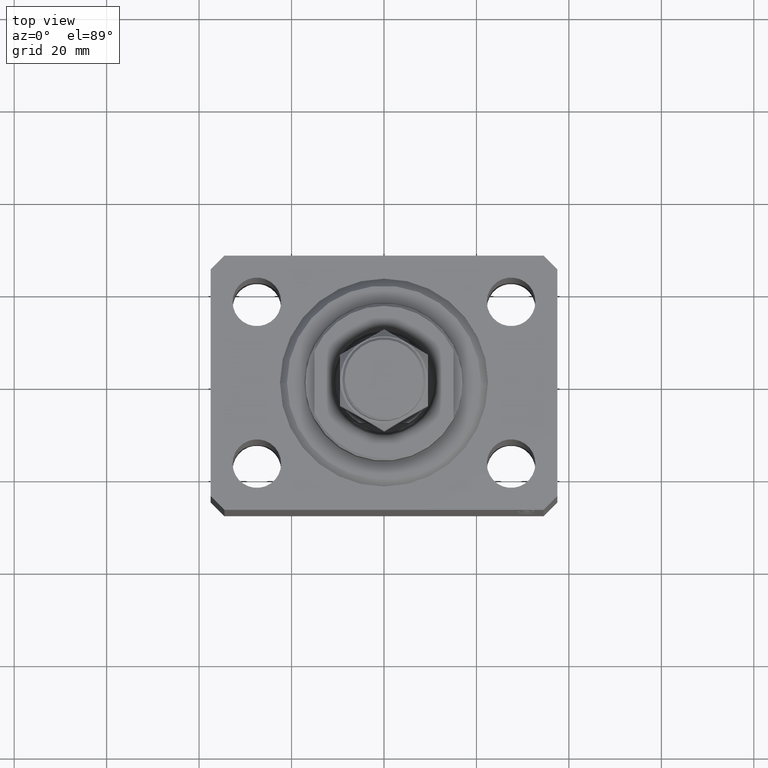
[diagram: clean part render]
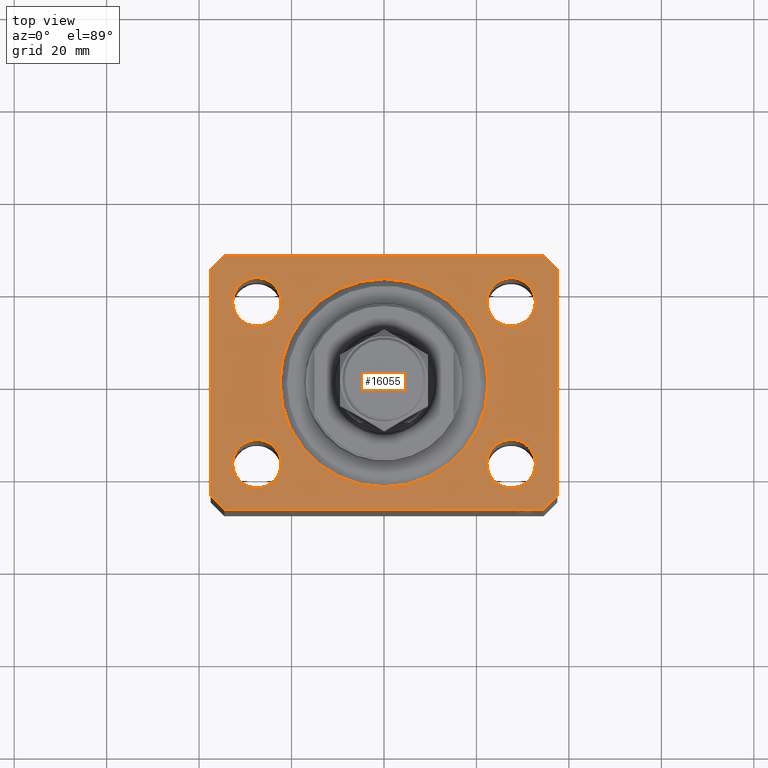
[diagram: same view with one face highlighted and labeled with its STEP entity id]
A machine part, top view. The second image highlights one B-rep face of the part: STEP entity #16055.
In plain terms, the highlighted planar face has unit normal (0, 0, 1).
Its self-contained STEP definition (entity closure, byte-faithful):
#177 = CARTESIAN_POINT ( 'NONE',  ( 27.49999999999999289, -17.50000000000000000, 0.000000000000000000 ) ) ;
#405 = CARTESIAN_POINT ( 'NONE',  ( -34.49999999999998579, -27.49999999999999645, 0.000000000000000000 ) ) ;
#1527 = LINE ( 'NONE', #30611, #24210 ) ;
#1590 = DIRECTION ( 'NONE',  ( 0.000000000000000000, 0.000000000000000000, 1.000000000000000000 ) ) ;
#1744 = DIRECTION ( 'NONE',  ( 1.000000000000000000, 0.000000000000000000, 0.000000000000000000 ) ) ;
#1850 = EDGE_LOOP ( 'NONE', ( #40602, #24947 ) ) ;
#1961 = CIRCLE ( 'NONE', #19154, 22.50000000000000355 ) ;
#1994 = VERTEX_POINT ( 'NONE', #3373 ) ;
#2024 = EDGE_CURVE ( 'NONE', #20496, #36748, #30701, .T. ) ;
#2246 = AXIS2_PLACEMENT_3D ( 'NONE', #10883, #35940, #28462 ) ;
#2276 = AXIS2_PLACEMENT_3D ( 'NONE', #31024, #42006, #45314 ) ;
#3080 = VERTEX_POINT ( 'NONE', #42292 ) ;
#3373 = CARTESIAN_POINT ( 'NONE',  ( 37.49999999999999289, -24.50000000000000000, 0.000000000000000000 ) ) ;
#3408 = EDGE_CURVE ( 'NONE', #3080, #14615, #42639, .T. ) ;
#3789 = CARTESIAN_POINT ( 'NONE',  ( 37.49999999999999289, -24.50000000000000000, 0.000000000000000000 ) ) ;
#4741 = FACE_BOUND ( 'NONE', #8420, .T. ) ;
#4976 = VERTEX_POINT ( 'NONE', #8072 ) ;
#5238 = DIRECTION ( 'NONE',  ( 0.000000000000000000, 0.000000000000000000, 1.000000000000000000 ) ) ;
#5327 = VERTEX_POINT ( 'NONE', #5833 ) ;
#5833 = CARTESIAN_POINT ( 'NONE',  ( -32.75000000000000000, 17.49999999999999645, 0.000000000000000000 ) ) ;
#6409 = EDGE_LOOP ( 'NONE', ( #15706, #43586, #24204, #14853, #23542, #17841, #35893, #38768 ) ) ;
#6503 = CARTESIAN_POINT ( 'NONE',  ( 32.75000000000000000, 17.49999999999999289, 0.000000000000000000 ) ) ;
#6727 = VERTEX_POINT ( 'NONE', #405 ) ;
#7079 = VERTEX_POINT ( 'NONE', #26804 ) ;
#7121 = CARTESIAN_POINT ( 'NONE',  ( -22.25000000000000000, 17.49999999999999645, 0.000000000000000000 ) ) ;
#7281 = VERTEX_POINT ( 'NONE', #29323 ) ;
#7471 = DIRECTION ( 'NONE',  ( 1.000000000000000000, 0.000000000000000000, 0.000000000000000000 ) ) ;
#7934 = CARTESIAN_POINT ( 'NONE',  ( 32.74999999999999289, -17.50000000000000000, 0.000000000000000000 ) ) ;
#7937 = DIRECTION ( 'NONE',  ( 0.000000000000000000, 0.000000000000000000, 1.000000000000000000 ) ) ;
#8047 = EDGE_CURVE ( 'NONE', #26975, #11142, #30139, .T. ) ;
#8050 = EDGE_CURVE ( 'NONE', #37148, #26944, #1961, .T. ) ;
#8072 = CARTESIAN_POINT ( 'NONE',  ( -22.24999999999999289, -17.50000000000000000, 0.000000000000000000 ) ) ;
#8300 = DIRECTION ( 'NONE',  ( 1.000000000000000000, 0.000000000000000000, 0.000000000000000000 ) ) ;
#8420 = EDGE_LOOP ( 'NONE', ( #26923, #39799 ) ) ;
#9104 = ORIENTED_EDGE ( 'NONE', *, *, #35010, .F. ) ;
#9440 = CIRCLE ( 'NONE', #28847, 5.250000000000000888 ) ;
#10617 = LINE ( 'NONE', #3789, #23417 ) ;
#10781 = CARTESIAN_POINT ( 'NONE',  ( 34.50000000000056843, 27.50000000000000000, 0.000000000000000000 ) ) ;
#10883 = CARTESIAN_POINT ( 'NONE',  ( 27.49999999999999289, -17.50000000000000000, 0.000000000000000000 ) ) ;
#10922 = CARTESIAN_POINT ( 'NONE',  ( 0.000000000000000000, 0.000000000000000000, 0.000000000000000000 ) ) ;
#11114 = ORIENTED_EDGE ( 'NONE', *, *, #27872, .F. ) ;
#11142 = VERTEX_POINT ( 'NONE', #22207 ) ;
#11780 = EDGE_CURVE ( 'NONE', #7281, #3080, #38764, .T. ) ;
#12092 = DIRECTION ( 'NONE',  ( 0.000000000000000000, 0.000000000000000000, 1.000000000000000000 ) ) ;
#12325 = CARTESIAN_POINT ( 'NONE',  ( -37.49999999999999289, 24.50000000000000000, 0.000000000000000000 ) ) ;
#12391 = DIRECTION ( 'NONE',  ( 1.000000000000000000, 0.000000000000000000, 0.000000000000000000 ) ) ;
#12546 = DIRECTION ( 'NONE',  ( 0.000000000000000000, 0.000000000000000000, 1.000000000000000000 ) ) ;
#12812 = VECTOR ( 'NONE', #15144, 1000.000000000000114 ) ;
#13045 = EDGE_CURVE ( 'NONE', #5327, #36906, #45026, .T. ) ;
#13379 = DIRECTION ( 'NONE',  ( 0.000000000000000000, 0.000000000000000000, 1.000000000000000000 ) ) ;
#13505 = EDGE_CURVE ( 'NONE', #14615, #26975, #32733, .T. ) ;
#14410 = CIRCLE ( 'NONE', #42832, 5.250000000000000888 ) ;
#14424 = FACE_OUTER_BOUND ( 'NONE', #6409, .T. ) ;
#14615 = VERTEX_POINT ( 'NONE', #44040 ) ;
#14853 = ORIENTED_EDGE ( 'NONE', *, *, #18432, .T. ) ;
#15144 = DIRECTION ( 'NONE',  ( 0.7071067811865474617, 0.7071067811865474617, 0.000000000000000000 ) ) ;
#15224 = EDGE_LOOP ( 'NONE', ( #39924, #17226 ) ) ;
#15600 = DIRECTION ( 'NONE',  ( 0.7071067811865483499, -0.7071067811865466846, 0.000000000000000000 ) ) ;
#15647 = CARTESIAN_POINT ( 'NONE',  ( -27.49999999999999289, -17.50000000000000000, 0.000000000000000000 ) ) ;
#15706 = ORIENTED_EDGE ( 'NONE', *, *, #3408, .T. ) ;
#16055 = ADVANCED_FACE ( 'NONE', ( #39480, #4741, #23027, #28728, #29822, #14424 ), #43011, .T. ) ;
#17226 = ORIENTED_EDGE ( 'NONE', *, *, #13045, .F. ) ;
#17832 = ORIENTED_EDGE ( 'NONE', *, *, #8050, .F. ) ;
#17841 = ORIENTED_EDGE ( 'NONE', *, *, #22284, .T. ) ;
#18271 = VERTEX_POINT ( 'NONE', #25460 ) ;
#18432 = EDGE_CURVE ( 'NONE', #11142, #6727, #1527, .T. ) ;
#18693 = EDGE_LOOP ( 'NONE', ( #11114, #9104 ) ) ;
#19154 = AXIS2_PLACEMENT_3D ( 'NONE', #27104, #12092, #41376 ) ;
#19680 = CIRCLE ( 'NONE', #39141, 5.250000000000000888 ) ;
#20455 = EDGE_CURVE ( 'NONE', #36748, #20496, #41916, .T. ) ;
#20496 = VERTEX_POINT ( 'NONE', #7934 ) ;
#20541 = EDGE_CURVE ( 'NONE', #6727, #7079, #29255, .T. ) ;
#21829 = AXIS2_PLACEMENT_3D ( 'NONE', #45484, #13379, #34708 ) ;
#21955 = EDGE_CURVE ( 'NONE', #26944, #37148, #22490, .T. ) ;
#22013 = DIRECTION ( 'NONE',  ( 0.000000000000000000, 0.000000000000000000, 1.000000000000000000 ) ) ;
#22207 = CARTESIAN_POINT ( 'NONE',  ( -37.49999999999999289, -24.50000000000000000, 0.000000000000000000 ) ) ;
#22284 = EDGE_CURVE ( 'NONE', #7079, #1994, #25703, .T. ) ;
#22454 = VECTOR ( 'NONE', #36279, 1000.000000000000000 ) ;
#22490 = CIRCLE ( 'NONE', #2276, 22.50000000000000355 ) ;
#23027 = FACE_BOUND ( 'NONE', #1850, .T. ) ;
#23417 = VECTOR ( 'NONE', #39628, 1000.000000000000000 ) ;
#23526 = VERTEX_POINT ( 'NONE', #35007 ) ;
#23542 = ORIENTED_EDGE ( 'NONE', *, *, #20541, .T. ) ;
#24204 = ORIENTED_EDGE ( 'NONE', *, *, #8047, .T. ) ;
#24210 = VECTOR ( 'NONE', #15600, 1000.000000000000000 ) ;
#24947 = ORIENTED_EDGE ( 'NONE', *, *, #20455, .F. ) ;
#25460 = CARTESIAN_POINT ( 'NONE',  ( -32.74999999999999289, -17.50000000000000000, 0.000000000000000000 ) ) ;
#25703 = LINE ( 'NONE', #38886, #12812 ) ;
#25773 = CARTESIAN_POINT ( 'NONE',  ( -27.50000000000000000, 17.49999999999999645, 0.000000000000000000 ) ) ;
#26804 = CARTESIAN_POINT ( 'NONE',  ( 34.49999999999999289, -27.49999999999999645, 0.000000000000000000 ) ) ;
#26850 = CARTESIAN_POINT ( 'NONE',  ( -37.49999999999999289, 24.50000000000000000, 0.000000000000000000 ) ) ;
#26923 = ORIENTED_EDGE ( 'NONE', *, *, #40999, .F. ) ;
#26944 = VERTEX_POINT ( 'NONE', #44650 ) ;
#26975 = VERTEX_POINT ( 'NONE', #26850 ) ;
#27050 = CARTESIAN_POINT ( 'NONE',  ( 27.50000000000000000, 17.49999999999999289, 0.000000000000000000 ) ) ;
#27076 = VECTOR ( 'NONE', #44210, 1000.000000000000000 ) ;
#27104 = CARTESIAN_POINT ( 'NONE',  ( 0.000000000000000000, 0.000000000000000000, 0.000000000000000000 ) ) ;
#27464 = EDGE_CURVE ( 'NONE', #18271, #4976, #36077, .T. ) ;
#27872 = EDGE_CURVE ( 'NONE', #31971, #23526, #14410, .T. ) ;
#28103 = VECTOR ( 'NONE', #31411, 1000.000000000000000 ) ;
#28241 = CARTESIAN_POINT ( 'NONE',  ( 37.50000000000051870, 24.49999999999995381, 0.000000000000000000 ) ) ;
#28462 = DIRECTION ( 'NONE',  ( 1.000000000000000000, 0.000000000000000000, 0.000000000000000000 ) ) ;
#28728 = FACE_BOUND ( 'NONE', #18693, .T. ) ;
#28847 = AXIS2_PLACEMENT_3D ( 'NONE', #37152, #12546, #1744 ) ;
#28848 = EDGE_CURVE ( 'NONE', #1994, #7281, #10617, .T. ) ;
#29255 = LINE ( 'NONE', #43540, #22454 ) ;
#29323 = CARTESIAN_POINT ( 'NONE',  ( 37.50000000000051870, 24.49999999999995381, 0.000000000000000000 ) ) ;
#29822 = FACE_BOUND ( 'NONE', #15224, .T. ) ;
#29851 = EDGE_LOOP ( 'NONE', ( #37573, #17832 ) ) ;
#29918 = CARTESIAN_POINT ( 'NONE',  ( -34.49999999999999289, 27.50000000000000000, 0.000000000000000000 ) ) ;
#29945 = EDGE_CURVE ( 'NONE', #36906, #5327, #19680, .T. ) ;
#30139 = LINE ( 'NONE', #12325, #36387 ) ;
#30611 = CARTESIAN_POINT ( 'NONE',  ( -37.49999999999999289, -24.50000000000000000, 0.000000000000000000 ) ) ;
#30701 = CIRCLE ( 'NONE', #2246, 5.250000000000000888 ) ;
#31024 = CARTESIAN_POINT ( 'NONE',  ( 0.000000000000000000, 0.000000000000000000, 0.000000000000000000 ) ) ;
#31411 = DIRECTION ( 'NONE',  ( -1.000000000000000000, 0.000000000000000000, 0.000000000000000000 ) ) ;
#31971 = VERTEX_POINT ( 'NONE', #6503 ) ;
#32342 = DIRECTION ( 'NONE',  ( 1.000000000000000000, 0.000000000000000000, 0.000000000000000000 ) ) ;
#32517 = CIRCLE ( 'NONE', #38512, 5.250000000000000888 ) ;
#32733 = LINE ( 'NONE', #29918, #27076 ) ;
#33253 = CARTESIAN_POINT ( 'NONE',  ( 27.50000000000000000, 17.49999999999999289, 0.000000000000000000 ) ) ;
#33572 = DIRECTION ( 'NONE',  ( 1.000000000000000000, 0.000000000000000000, -0.000000000000000000 ) ) ;
#34534 = VECTOR ( 'NONE', #41604, 1000.000000000000114 ) ;
#34557 = AXIS2_PLACEMENT_3D ( 'NONE', #177, #43081, #35132 ) ;
#34708 = DIRECTION ( 'NONE',  ( 1.000000000000000000, 0.000000000000000000, 0.000000000000000000 ) ) ;
#35007 = CARTESIAN_POINT ( 'NONE',  ( 22.25000000000000000, 17.49999999999999289, 0.000000000000000000 ) ) ;
#35010 = EDGE_CURVE ( 'NONE', #23526, #31971, #32517, .T. ) ;
#35132 = DIRECTION ( 'NONE',  ( 1.000000000000000000, 0.000000000000000000, 0.000000000000000000 ) ) ;
#35893 = ORIENTED_EDGE ( 'NONE', *, *, #28848, .T. ) ;
#35940 = DIRECTION ( 'NONE',  ( 0.000000000000000000, 0.000000000000000000, 1.000000000000000000 ) ) ;
#36077 = CIRCLE ( 'NONE', #38326, 5.250000000000000888 ) ;
#36279 = DIRECTION ( 'NONE',  ( 1.000000000000000000, 0.000000000000000000, 0.000000000000000000 ) ) ;
#36387 = VECTOR ( 'NONE', #44192, 1000.000000000000000 ) ;
#36748 = VERTEX_POINT ( 'NONE', #43015 ) ;
#36906 = VERTEX_POINT ( 'NONE', #7121 ) ;
#37148 = VERTEX_POINT ( 'NONE', #38462 ) ;
#37152 = CARTESIAN_POINT ( 'NONE',  ( -27.49999999999999289, -17.50000000000000000, 0.000000000000000000 ) ) ;
#37573 = ORIENTED_EDGE ( 'NONE', *, *, #21955, .F. ) ;
#38326 = AXIS2_PLACEMENT_3D ( 'NONE', #15647, #7937, #7471 ) ;
#38462 = CARTESIAN_POINT ( 'NONE',  ( -22.50000000000000355, 2.755455298081545172E-15, 0.000000000000000000 ) ) ;
#38512 = AXIS2_PLACEMENT_3D ( 'NONE', #33253, #1590, #12391 ) ;
#38764 = LINE ( 'NONE', #28241, #34534 ) ;
#38768 = ORIENTED_EDGE ( 'NONE', *, *, #11780, .T. ) ;
#38886 = CARTESIAN_POINT ( 'NONE',  ( 34.49999999999999289, -27.49999999999999645, 0.000000000000000000 ) ) ;
#39141 = AXIS2_PLACEMENT_3D ( 'NONE', #25773, #22013, #32342 ) ;
#39199 = AXIS2_PLACEMENT_3D ( 'NONE', #10922, #44573, #33572 ) ;
#39480 = FACE_BOUND ( 'NONE', #29851, .T. ) ;
#39628 = DIRECTION ( 'NONE',  ( 1.076236605503979380E-14, 1.000000000000000000, 0.000000000000000000 ) ) ;
#39799 = ORIENTED_EDGE ( 'NONE', *, *, #27464, .F. ) ;
#39924 = ORIENTED_EDGE ( 'NONE', *, *, #29945, .F. ) ;
#40602 = ORIENTED_EDGE ( 'NONE', *, *, #2024, .F. ) ;
#40999 = EDGE_CURVE ( 'NONE', #4976, #18271, #9440, .T. ) ;
#41376 = DIRECTION ( 'NONE',  ( 1.000000000000000000, 0.000000000000000000, 0.000000000000000000 ) ) ;
#41604 = DIRECTION ( 'NONE',  ( -0.7071067811865364705, 0.7071067811865584529, 0.000000000000000000 ) ) ;
#41916 = CIRCLE ( 'NONE', #34557, 5.250000000000000888 ) ;
#42006 = DIRECTION ( 'NONE',  ( 0.000000000000000000, 0.000000000000000000, 1.000000000000000000 ) ) ;
#42292 = CARTESIAN_POINT ( 'NONE',  ( 34.50000000000056843, 27.50000000000000000, 0.000000000000000000 ) ) ;
#42639 = LINE ( 'NONE', #10781, #28103 ) ;
#42832 = AXIS2_PLACEMENT_3D ( 'NONE', #27050, #5238, #8300 ) ;
#43011 = PLANE ( 'NONE',  #39199 ) ;
#43015 = CARTESIAN_POINT ( 'NONE',  ( 22.24999999999999289, -17.50000000000000000, 0.000000000000000000 ) ) ;
#43081 = DIRECTION ( 'NONE',  ( 0.000000000000000000, 0.000000000000000000, 1.000000000000000000 ) ) ;
#43540 = CARTESIAN_POINT ( 'NONE',  ( -34.49999999999998579, -27.49999999999999645, 0.000000000000000000 ) ) ;
#43586 = ORIENTED_EDGE ( 'NONE', *, *, #13505, .T. ) ;
#44040 = CARTESIAN_POINT ( 'NONE',  ( -34.49999999999999289, 27.50000000000000000, 0.000000000000000000 ) ) ;
#44192 = DIRECTION ( 'NONE',  ( 0.000000000000000000, -1.000000000000000000, 0.000000000000000000 ) ) ;
#44210 = DIRECTION ( 'NONE',  ( -0.7071067811865471286, -0.7071067811865479058, 0.000000000000000000 ) ) ;
#44573 = DIRECTION ( 'NONE',  ( 0.000000000000000000, 0.000000000000000000, 1.000000000000000000 ) ) ;
#44650 = CARTESIAN_POINT ( 'NONE',  ( 22.50000000000000355, 0.000000000000000000, 0.000000000000000000 ) ) ;
#45026 = CIRCLE ( 'NONE', #21829, 5.250000000000000888 ) ;
#45314 = DIRECTION ( 'NONE',  ( 1.000000000000000000, 0.000000000000000000, 0.000000000000000000 ) ) ;
#45484 = CARTESIAN_POINT ( 'NONE',  ( -27.50000000000000000, 17.49999999999999645, 0.000000000000000000 ) ) ;